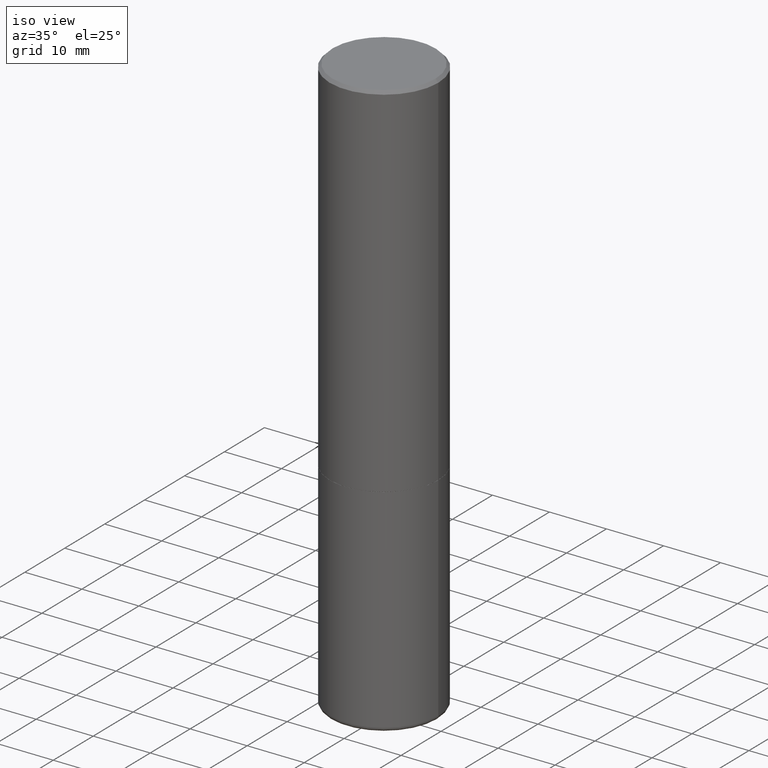
[diagram: clean part render]
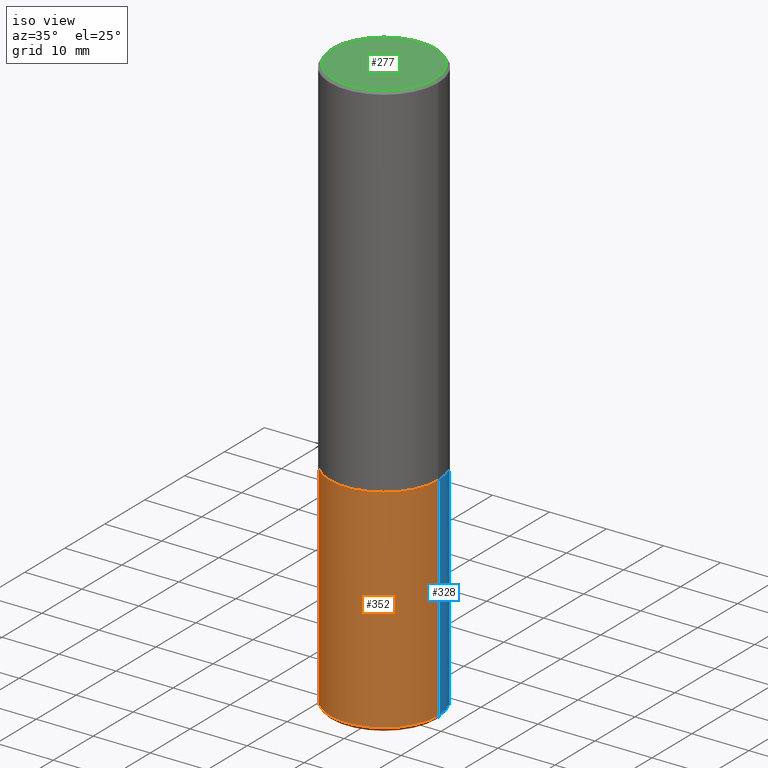
[diagram: same view with three faces highlighted in distinct colors, each labeled with its STEP entity id]
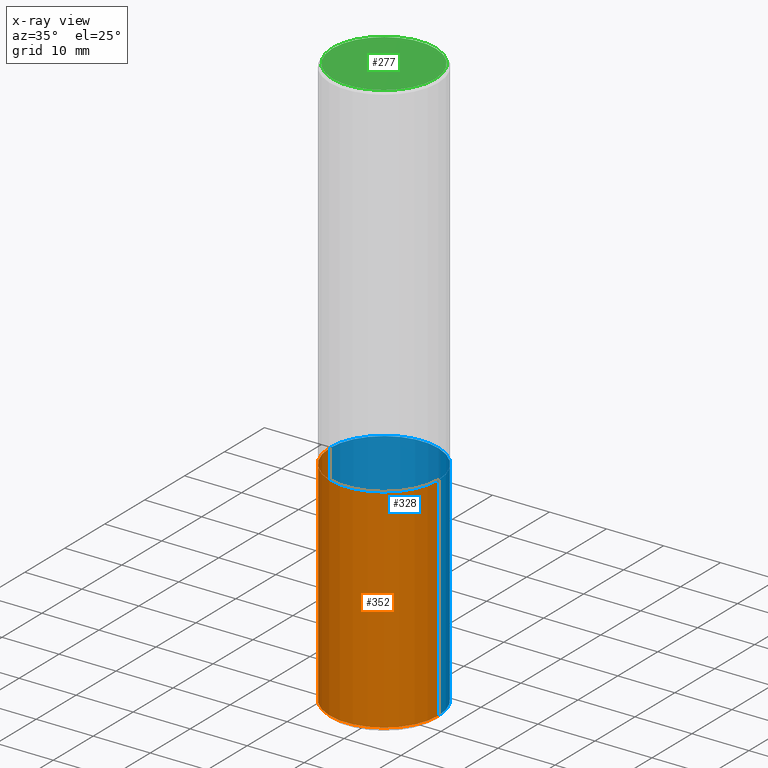
[diagram: x-ray of the same camera — body ghosted, the three highlighted faces saturated]
A machine part, iso view with three faces highlighted in distinct colors.
The next image is the same camera in x-ray (body ghosted, the three faces saturated) — at least one of them is partly hidden behind the body in this view.
Their STEP definitions:

[orange] entity #352 — the highlighted cylindrical surface (partial cylindrical patch) has radius 9.525 mm, axis along (-0, 0, 1).
#10 = ORIENTED_EDGE ( 'NONE', *, *, #313, .F. ) ;
#12 = ORIENTED_EDGE ( 'NONE', *, *, #30, .T. ) ;
#30 = EDGE_CURVE ( 'NONE', #221, #257, #416, .T. ) ;
#34 = CARTESIAN_POINT ( 'NONE',  ( -0.3750000000000000555, 2.664535259100376091E-15, -1.844600658845589598E-29 ) ) ;
#57 = CARTESIAN_POINT ( 'NONE',  ( 0.3750000000000000555, -1.134731435124021338E-14, -2.500000000000000000 ) ) ;
#70 = AXIS2_PLACEMENT_3D ( 'NONE', #246, #412, #307 ) ;
#75 = CIRCLE ( 'NONE', #70, 0.3750000000000000555 ) ;
#81 = VERTEX_POINT ( 'NONE', #57 ) ;
#85 = EDGE_LOOP ( 'NONE', ( #10, #12, #387, #134 ) ) ;
#104 = DIRECTION ( 'NONE',  ( -2.445468806185136877E-29, 3.491481338843145188E-15, 1.000000000000000000 ) ) ;
#108 = CARTESIAN_POINT ( 'NONE',  ( 0.3750000000000000555, -1.647993546795453747E-14, -3.970041113957362811 ) ) ;
#109 = LINE ( 'NONE', #34, #245 ) ;
#112 = CARTESIAN_POINT ( 'NONE',  ( 0.000000000000000000, 0.000000000000000000, 0.000000000000000000 ) ) ;
#121 = VECTOR ( 'NONE', #104, 39.37007874015748143 ) ;
#134 = ORIENTED_EDGE ( 'NONE', *, *, #160, .F. ) ;
#154 = FACE_OUTER_BOUND ( 'NONE', #85, .T. ) ;
#160 = EDGE_CURVE ( 'NONE', #285, #81, #75, .T. ) ;
#178 = DIRECTION ( 'NONE',  ( -2.445468806185136877E-29, 3.491481338843145188E-15, 1.000000000000000000 ) ) ;
#185 = DIRECTION ( 'NONE',  ( -2.445468806185136597E-29, 3.491481338843145583E-15, 1.000000000000000000 ) ) ;
#187 = EDGE_CURVE ( 'NONE', #257, #81, #378, .T. ) ;
#188 = DIRECTION ( 'NONE',  ( 1.000000000000000000, -6.982962677686265922E-15, 4.876176775795935793E-29 ) ) ;
#192 = AXIS2_PLACEMENT_3D ( 'NONE', #396, #198, #433 ) ;
#198 = DIRECTION ( 'NONE',  ( -2.445468806185136597E-29, 3.491481338843145583E-15, 1.000000000000000000 ) ) ;
#221 = VERTEX_POINT ( 'NONE', #380 ) ;
#245 = VECTOR ( 'NONE', #178, 39.37007874015748143 ) ;
#246 = CARTESIAN_POINT ( 'NONE',  ( 6.113672015462842613E-29, -8.728703347107864943E-15, -2.500000000000000000 ) ) ;
#257 = VERTEX_POINT ( 'NONE', #108 ) ;
#285 = VERTEX_POINT ( 'NONE', #438 ) ;
#307 = DIRECTION ( 'NONE',  ( 1.000000000000000000, -6.982962677686264344E-15, 0.000000000000000000 ) ) ;
#313 = EDGE_CURVE ( 'NONE', #221, #285, #109, .T. ) ;
#352 = ADVANCED_FACE ( 'NONE', ( #154 ), #417, .T. ) ;
#371 = CARTESIAN_POINT ( 'NONE',  ( 0.3750000000000000555, -2.618611004132350016E-15, 1.828566290923476203E-29 ) ) ;
#378 = LINE ( 'NONE', #371, #121 ) ;
#380 = CARTESIAN_POINT ( 'NONE',  ( -0.3750000000000000555, -8.630478646364648921E-15, -3.970041113957362811 ) ) ;
#387 = ORIENTED_EDGE ( 'NONE', *, *, #187, .T. ) ;
#393 = AXIS2_PLACEMENT_3D ( 'NONE', #112, #185, #188 ) ;
#396 = CARTESIAN_POINT ( 'NONE',  ( 9.708611703455221728E-29, -1.386132446382218587E-14, -3.970041113957362811 ) ) ;
#412 = DIRECTION ( 'NONE',  ( -2.445468806185136597E-29, 3.491481338843145583E-15, 1.000000000000000000 ) ) ;
#416 = CIRCLE ( 'NONE', #192, 0.3750000000000000555 ) ;
#417 = CYLINDRICAL_SURFACE ( 'NONE', #393, 0.3750000000000000555 ) ;
#433 = DIRECTION ( 'NONE',  ( 1.000000000000000000, -6.982962677686266711E-15, 0.000000000000000000 ) ) ;
#438 = CARTESIAN_POINT ( 'NONE',  ( -0.3750000000000000555, -8.630478646364648921E-15, -2.500000000000000000 ) ) ;

[blue] entity #328 — the highlighted cylindrical surface (partial cylindrical patch) has radius 9.525 mm, axis along (-0, 0, 1).
#34 = CARTESIAN_POINT ( 'NONE',  ( -0.3750000000000000555, 2.664535259100376091E-15, -1.844600658845589598E-29 ) ) ;
#50 = ORIENTED_EDGE ( 'NONE', *, *, #313, .T. ) ;
#57 = CARTESIAN_POINT ( 'NONE',  ( 0.3750000000000000555, -1.134731435124021338E-14, -2.500000000000000000 ) ) ;
#69 = AXIS2_PLACEMENT_3D ( 'NONE', #282, #251, #114 ) ;
#77 = DIRECTION ( 'NONE',  ( -2.445468806185136597E-29, 3.491481338843145583E-15, 1.000000000000000000 ) ) ;
#81 = VERTEX_POINT ( 'NONE', #57 ) ;
#87 = EDGE_LOOP ( 'NONE', ( #430, #50, #390, #158 ) ) ;
#96 = AXIS2_PLACEMENT_3D ( 'NONE', #286, #316, #381 ) ;
#104 = DIRECTION ( 'NONE',  ( -2.445468806185136877E-29, 3.491481338843145188E-15, 1.000000000000000000 ) ) ;
#108 = CARTESIAN_POINT ( 'NONE',  ( 0.3750000000000000555, -1.647993546795453747E-14, -3.970041113957362811 ) ) ;
#109 = LINE ( 'NONE', #34, #245 ) ;
#114 = DIRECTION ( 'NONE',  ( 1.000000000000000000, -6.982962677686264344E-15, 0.000000000000000000 ) ) ;
#121 = VECTOR ( 'NONE', #104, 39.37007874015748143 ) ;
#157 = CIRCLE ( 'NONE', #69, 0.3750000000000000555 ) ;
#158 = ORIENTED_EDGE ( 'NONE', *, *, #187, .F. ) ;
#178 = DIRECTION ( 'NONE',  ( -2.445468806185136877E-29, 3.491481338843145188E-15, 1.000000000000000000 ) ) ;
#187 = EDGE_CURVE ( 'NONE', #257, #81, #378, .T. ) ;
#221 = VERTEX_POINT ( 'NONE', #380 ) ;
#245 = VECTOR ( 'NONE', #178, 39.37007874015748143 ) ;
#248 = FACE_OUTER_BOUND ( 'NONE', #87, .T. ) ;
#251 = DIRECTION ( 'NONE',  ( -2.445468806185136597E-29, 3.491481338843145583E-15, 1.000000000000000000 ) ) ;
#257 = VERTEX_POINT ( 'NONE', #108 ) ;
#273 = DIRECTION ( 'NONE',  ( 1.000000000000000000, -6.982962677686265922E-15, 4.876176775795935793E-29 ) ) ;
#282 = CARTESIAN_POINT ( 'NONE',  ( 6.113672015462842613E-29, -8.728703347107864943E-15, -2.500000000000000000 ) ) ;
#285 = VERTEX_POINT ( 'NONE', #438 ) ;
#286 = CARTESIAN_POINT ( 'NONE',  ( 9.708611703455221728E-29, -1.386132446382218587E-14, -3.970041113957362811 ) ) ;
#309 = CARTESIAN_POINT ( 'NONE',  ( 0.000000000000000000, 0.000000000000000000, 0.000000000000000000 ) ) ;
#313 = EDGE_CURVE ( 'NONE', #221, #285, #109, .T. ) ;
#314 = AXIS2_PLACEMENT_3D ( 'NONE', #309, #77, #273 ) ;
#316 = DIRECTION ( 'NONE',  ( -2.445468806185136597E-29, 3.491481338843145583E-15, 1.000000000000000000 ) ) ;
#328 = ADVANCED_FACE ( 'NONE', ( #248 ), #348, .T. ) ;
#348 = CYLINDRICAL_SURFACE ( 'NONE', #314, 0.3750000000000000555 ) ;
#371 = CARTESIAN_POINT ( 'NONE',  ( 0.3750000000000000555, -2.618611004132350016E-15, 1.828566290923476203E-29 ) ) ;
#373 = CIRCLE ( 'NONE', #96, 0.3750000000000000555 ) ;
#378 = LINE ( 'NONE', #371, #121 ) ;
#380 = CARTESIAN_POINT ( 'NONE',  ( -0.3750000000000000555, -8.630478646364648921E-15, -3.970041113957362811 ) ) ;
#381 = DIRECTION ( 'NONE',  ( 1.000000000000000000, -6.982962677686266711E-15, 0.000000000000000000 ) ) ;
#389 = EDGE_CURVE ( 'NONE', #81, #285, #157, .T. ) ;
#390 = ORIENTED_EDGE ( 'NONE', *, *, #389, .F. ) ;
#391 = EDGE_CURVE ( 'NONE', #257, #221, #373, .T. ) ;
#430 = ORIENTED_EDGE ( 'NONE', *, *, #391, .T. ) ;
#438 = CARTESIAN_POINT ( 'NONE',  ( -0.3750000000000000555, -8.630478646364648921E-15, -2.500000000000000000 ) ) ;

[green] entity #277 — the highlighted planar face has unit normal (0, -0, -1).
#3 = FACE_OUTER_BOUND ( 'NONE', #13, .T. ) ;
#13 = EDGE_LOOP ( 'NONE', ( #79, #218 ) ) ;
#14 = CIRCLE ( 'NONE', #222, 0.3549999999999997047 ) ;
#37 = DIRECTION ( 'NONE',  ( -1.000000000000000000, 6.982962677686265922E-15, -4.876176775795935793E-29 ) ) ;
#73 = DIRECTION ( 'NONE',  ( -2.445468806185136597E-29, 3.491481338843145583E-15, 1.000000000000000000 ) ) ;
#79 = ORIENTED_EDGE ( 'NONE', *, *, #199, .T. ) ;
#83 = AXIS2_PLACEMENT_3D ( 'NONE', #175, #105, #375 ) ;
#105 = DIRECTION ( 'NONE',  ( -2.445468806185136597E-29, 3.491481338843145583E-15, 1.000000000000000000 ) ) ;
#137 = CIRCLE ( 'NONE', #83, 0.3549999999999997047 ) ;
#142 = CARTESIAN_POINT ( 'NONE',  ( -0.3549999999999997047, 2.513866563967053491E-15, 4.268512490082953109E-18 ) ) ;
#146 = PLANE ( 'NONE',  #181 ) ;
#175 = CARTESIAN_POINT ( 'NONE',  ( -1.043851414335219820E-46, 1.490343170380447200E-32, 4.268512490100411279E-18 ) ) ;
#181 = AXIS2_PLACEMENT_3D ( 'NONE', #183, #312, #37 ) ;
#183 = CARTESIAN_POINT ( 'NONE',  ( 2.478951750578622237E-15, 0.3549999999999997047, -1.237341619044265441E-15 ) ) ;
#191 = VERTEX_POINT ( 'NONE', #142 ) ;
#199 = EDGE_CURVE ( 'NONE', #191, #402, #14, .T. ) ;
#209 = EDGE_CURVE ( 'NONE', #402, #191, #137, .T. ) ;
#215 = DIRECTION ( 'NONE',  ( 1.000000000000000000, -6.982962677686265922E-15, 4.876231632511992107E-29 ) ) ;
#218 = ORIENTED_EDGE ( 'NONE', *, *, #209, .T. ) ;
#222 = AXIS2_PLACEMENT_3D ( 'NONE', #408, #73, #215 ) ;
#253 = CARTESIAN_POINT ( 'NONE',  ( 0.3549999999999997047, -2.538996582575038287E-15, 4.268512490117958041E-18 ) ) ;
#277 = ADVANCED_FACE ( 'NONE', ( #3 ), #146, .F. ) ;
#312 = DIRECTION ( 'NONE',  ( 2.438088387897960049E-29, -3.491481338843145188E-15, -1.000000000000000000 ) ) ;
#375 = DIRECTION ( 'NONE',  ( 1.000000000000000000, -6.982962677686265922E-15, 4.876231632511992107E-29 ) ) ;
#402 = VERTEX_POINT ( 'NONE', #253 ) ;
#408 = CARTESIAN_POINT ( 'NONE',  ( -1.043851414335219820E-46, 1.490343170380447200E-32, 4.268512490100411279E-18 ) ) ;